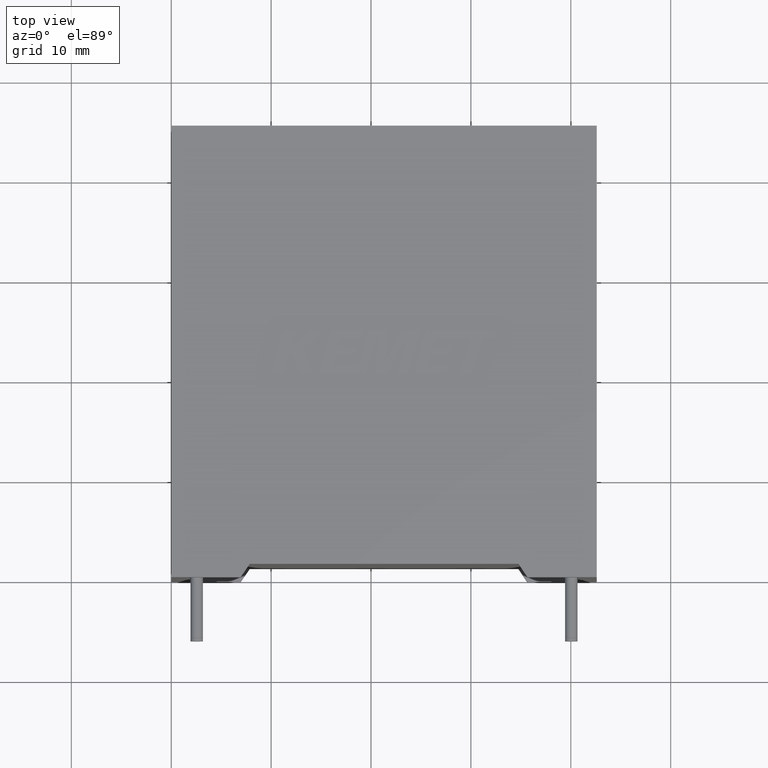
[diagram: clean part render]
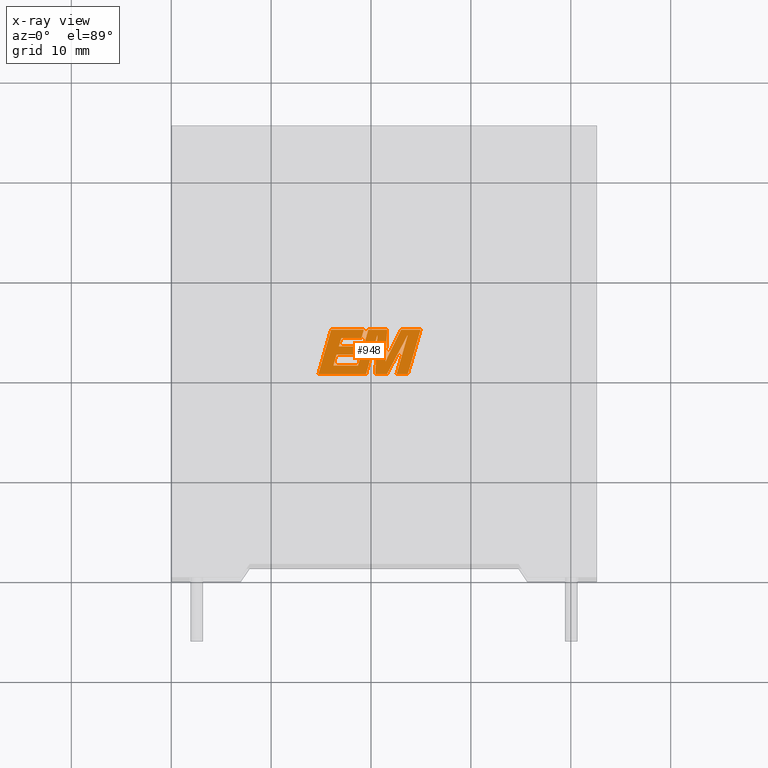
[diagram: x-ray — body ghosted, one internal face saturated and labeled with its STEP entity id]
A machine part, top view, then the same camera in x-ray: the body is ghosted and one INTERNAL B-rep face — a face not visible from any outside direction — is saturated and labeled: STEP entity #948.
In plain terms, the highlighted planar face has unit normal (0, 0, -1).
Its self-contained STEP definition (entity closure, byte-faithful):
#4 = LINE ( 'NONE', #2202, #2504 ) ;
#40 = VECTOR ( 'NONE', #1442, 1000.000000000000100 ) ;
#54 = DIRECTION ( 'NONE',  ( -1.000000000000000000, 0.0000000000000000000, 0.0000000000000000000 ) ) ;
#63 = DIRECTION ( 'NONE',  ( 1.000000000000000000, 0.0000000000000000000, 0.0000000000000000000 ) ) ;
#69 = EDGE_CURVE ( 'NONE', #749, #1993, #1301, .T. ) ;
#70 = LINE ( 'NONE', #2564, #1781 ) ;
#99 = CARTESIAN_POINT ( 'NONE',  ( 20.42202856382045800, 20.32643999999987700, 30.39999999999999900 ) ) ;
#105 = CARTESIAN_POINT ( 'NONE',  ( 18.68735580131990700, 23.09268343126179300, 30.39999999999999900 ) ) ;
#124 = VERTEX_POINT ( 'NONE', #2812 ) ;
#132 = VERTEX_POINT ( 'NONE', #2077 ) ;
#157 = LINE ( 'NONE', #1448, #1023 ) ;
#178 = EDGE_CURVE ( 'NONE', #915, #924, #2333, .T. ) ;
#184 = VECTOR ( 'NONE', #1859, 1000.000000000000200 ) ;
#186 = LINE ( 'NONE', #1141, #1987 ) ;
#192 = CARTESIAN_POINT ( 'NONE',  ( 21.60450190883435100, 20.32643999999987700, 30.39999999999999900 ) ) ;
#194 = CARTESIAN_POINT ( 'NONE',  ( 19.50954545448809100, 20.32643999999987700, 30.39999999999999900 ) ) ;
#218 = CARTESIAN_POINT ( 'NONE',  ( 16.54963302310860100, 22.27270559325017300, 30.39999999999999900 ) ) ;
#225 = CARTESIAN_POINT ( 'NONE',  ( 20.42202856382045800, 20.32643999999987700, 30.39999999999999900 ) ) ;
#274 = VECTOR ( 'NONE', #54, 1000.000000000000000 ) ;
#279 = VECTOR ( 'NONE', #2304, 1000.000000000000100 ) ;
#284 = VERTEX_POINT ( 'NONE', #482 ) ;
#297 = DIRECTION ( 'NONE',  ( 0.2793947940878290800, 0.9601763114327595000, 0.0000000000000000000 ) ) ;
#309 = VERTEX_POINT ( 'NONE', #1158 ) ;
#332 = CARTESIAN_POINT ( 'NONE',  ( 14.73111344322171200, 20.32643999999987700, 30.39999999999999900 ) ) ;
#334 = EDGE_CURVE ( 'NONE', #124, #1377, #1929, .T. ) ;
#342 = ORIENTED_EDGE ( 'NONE', *, *, #2303, .F. ) ;
#351 = DIRECTION ( 'NONE',  ( 0.2746459304916870600, 0.9615454294334487800, 0.0000000000000000000 ) ) ;
#390 = ORIENTED_EDGE ( 'NONE', *, *, #178, .F. ) ;
#455 = ORIENTED_EDGE ( 'NONE', *, *, #2685, .F. ) ;
#460 = LINE ( 'NONE', #2445, #1763 ) ;
#482 = CARTESIAN_POINT ( 'NONE',  ( 23.69914816909359300, 24.29429440274525800, 30.39999999999999900 ) ) ;
#483 = CARTESIAN_POINT ( 'NONE',  ( 20.64337227469650000, 24.27527815657259000, 30.39999999999999900 ) ) ;
#550 = EDGE_CURVE ( 'NONE', #1717, #2753, #2023, .T. ) ;
#564 = CARTESIAN_POINT ( 'NONE',  ( 16.00748119315608500, 24.76197267852246900, 30.39999999999999900 ) ) ;
#599 = EDGE_LOOP ( 'NONE', ( #2718, #3095, #2127, #2404, #1357, #2251, #1540, #390, #864, #455, #2667, #1098, #1476, #3009, #774, #2313, #663, #342, #1765, #2184, #2177, #1094, #2918 ) ) ;
#602 = VERTEX_POINT ( 'NONE', #2078 ) ;
#663 = ORIENTED_EDGE ( 'NONE', *, *, #887, .F. ) ;
#686 = DIRECTION ( 'NONE',  ( 0.2740217765954296400, 0.9617234872620531400, 0.0000000000000000000 ) ) ;
#742 = CARTESIAN_POINT ( 'NONE',  ( 16.54963302310860100, 22.27270559325017300, 30.39999999999999900 ) ) ;
#743 = CARTESIAN_POINT ( 'NONE',  ( -0.1503410928526370500, -1.896653983250437700, 30.39999999999999900 ) ) ;
#749 = VERTEX_POINT ( 'NONE', #2626 ) ;
#758 = LINE ( 'NONE', #192, #2658 ) ;
#774 = ORIENTED_EDGE ( 'NONE', *, *, #2612, .F. ) ;
#791 = DIRECTION ( 'NONE',  ( -0.2762517575166409900, -0.9610853065513834700, 0.0000000000000000000 ) ) ;
#804 = LINE ( 'NONE', #218, #2318 ) ;
#818 = DIRECTION ( 'NONE',  ( -1.000000000000000000, 0.0000000000000000000, 0.0000000000000000000 ) ) ;
#825 = DIRECTION ( 'NONE',  ( -0.2765379750249978300, -0.9610029908221272600, 0.0000000000000000000 ) ) ;
#841 = CARTESIAN_POINT ( 'NONE',  ( 23.68684829922329600, 20.32643999999988100, 30.39999999999999900 ) ) ;
#864 = ORIENTED_EDGE ( 'NONE', *, *, #2193, .F. ) ;
#887 = EDGE_CURVE ( 'NONE', #3014, #749, #804, .T. ) ;
#896 = CARTESIAN_POINT ( 'NONE',  ( 18.72003407046369000, 20.32643999999987700, 30.39999999999999900 ) ) ;
#915 = VERTEX_POINT ( 'NONE', #2385 ) ;
#924 = VERTEX_POINT ( 'NONE', #483 ) ;
#948 = ADVANCED_FACE ( 'NONE', ( #2907 ), #2190, .T. ) ;
#957 = VERTEX_POINT ( 'NONE', #2149 ) ;
#965 = EDGE_CURVE ( 'NONE', #2212, #309, #157, .T. ) ;
#967 = DIRECTION ( 'NONE',  ( -1.000000000000000000, 0.0000000000000000000, 0.0000000000000000000 ) ) ;
#999 = CARTESIAN_POINT ( 'NONE',  ( 24.96209664954390200, 24.76197267852246900, 30.39999999999999900 ) ) ;
#1006 = CARTESIAN_POINT ( 'NONE',  ( 19.04451057535562700, 23.91769180815600000, 30.39999999999999900 ) ) ;
#1014 = VECTOR ( 'NONE', #818, 1000.000000000000000 ) ;
#1021 = EDGE_CURVE ( 'NONE', #1911, #2056, #2742, .T. ) ;
#1023 = VECTOR ( 'NONE', #2687, 1000.000000000000000 ) ;
#1053 = VECTOR ( 'NONE', #967, 1000.000000000000000 ) ;
#1072 = CARTESIAN_POINT ( 'NONE',  ( 24.96209664954390200, 24.76197267852246900, 30.39999999999999900 ) ) ;
#1088 = LINE ( 'NONE', #3140, #2084 ) ;
#1094 = ORIENTED_EDGE ( 'NONE', *, *, #1389, .F. ) ;
#1098 = ORIENTED_EDGE ( 'NONE', *, *, #2832, .F. ) ;
#1123 = VECTOR ( 'NONE', #2141, 1000.000000000000000 ) ;
#1141 = CARTESIAN_POINT ( 'NONE',  ( 22.55971088192821100, 20.32643999999988100, 30.39999999999999900 ) ) ;
#1158 = CARTESIAN_POINT ( 'NONE',  ( 19.72672177880340200, 24.76197267852246900, 30.39999999999999900 ) ) ;
#1165 = LINE ( 'NONE', #564, #1753 ) ;
#1183 = CARTESIAN_POINT ( 'NONE',  ( 16.23552779361820300, 21.17030278269269100, 30.39999999999999900 ) ) ;
#1199 = VECTOR ( 'NONE', #2683, 1000.000000000000000 ) ;
#1248 = LINE ( 'NONE', #2121, #40 ) ;
#1284 = VERTEX_POINT ( 'NONE', #99 ) ;
#1301 = LINE ( 'NONE', #1597, #1464 ) ;
#1331 = CARTESIAN_POINT ( 'NONE',  ( 17.02363656092146000, 23.91769180815600000, 30.39999999999999900 ) ) ;
#1339 = EDGE_CURVE ( 'NONE', #284, #2015, #1088, .T. ) ;
#1357 = ORIENTED_EDGE ( 'NONE', *, *, #2919, .F. ) ;
#1377 = VERTEX_POINT ( 'NONE', #1183 ) ;
#1389 = EDGE_CURVE ( 'NONE', #957, #2212, #1248, .T. ) ;
#1394 = CARTESIAN_POINT ( 'NONE',  ( 23.68684829922329600, 20.32643999999988100, 30.39999999999999900 ) ) ;
#1404 = CARTESIAN_POINT ( 'NONE',  ( 16.23552779361820300, 21.17030278269269100, 30.39999999999999900 ) ) ;
#1418 = VERTEX_POINT ( 'NONE', #2381 ) ;
#1426 = DIRECTION ( 'NONE',  ( -1.000000000000000000, 0.0000000000000000000, 0.0000000000000000000 ) ) ;
#1434 = DIRECTION ( 'NONE',  ( 0.0000000000000000000, 0.0000000000000000000, -1.000000000000000000 ) ) ;
#1442 = DIRECTION ( 'NONE',  ( 0.05375259206908569700, 0.9985542843760946100, 0.0000000000000000000 ) ) ;
#1448 = CARTESIAN_POINT ( 'NONE',  ( 21.61565822307399600, 24.76197267852246900, 30.39999999999999900 ) ) ;
#1464 = VECTOR ( 'NONE', #351, 1000.000000000000000 ) ;
#1476 = ORIENTED_EDGE ( 'NONE', *, *, #1610, .F. ) ;
#1515 = CARTESIAN_POINT ( 'NONE',  ( 19.28430409104226900, 24.76197267852246900, 30.39999999999999900 ) ) ;
#1540 = ORIENTED_EDGE ( 'NONE', *, *, #2737, .F. ) ;
#1548 = EDGE_CURVE ( 'NONE', #132, #1682, #460, .T. ) ;
#1586 = CARTESIAN_POINT ( 'NONE',  ( 23.01670218402871300, 24.76197267852246900, 30.39999999999999900 ) ) ;
#1597 = CARTESIAN_POINT ( 'NONE',  ( 18.45314577919338500, 22.27270559325017300, 30.39999999999999900 ) ) ;
#1610 = EDGE_CURVE ( 'NONE', #1682, #2524, #1959, .T. ) ;
#1628 = DIRECTION ( 'NONE',  ( 0.2759782365590843200, 0.9611638845408925200, 0.0000000000000000000 ) ) ;
#1670 = EDGE_CURVE ( 'NONE', #1418, #957, #1873, .T. ) ;
#1682 = VERTEX_POINT ( 'NONE', #1331 ) ;
#1717 = VERTEX_POINT ( 'NONE', #1394 ) ;
#1753 = VECTOR ( 'NONE', #825, 1000.000000000000100 ) ;
#1763 = VECTOR ( 'NONE', #297, 1000.000000000000100 ) ;
#1765 = ORIENTED_EDGE ( 'NONE', *, *, #334, .F. ) ;
#1781 = VECTOR ( 'NONE', #2306, 1000.000000000000000 ) ;
#1840 = VECTOR ( 'NONE', #1628, 1000.000000000000000 ) ;
#1859 = DIRECTION ( 'NONE',  ( 0.2732148821746573400, 0.9619530280415400400, 0.0000000000000000000 ) ) ;
#1873 = LINE ( 'NONE', #1586, #279 ) ;
#1911 = VERTEX_POINT ( 'NONE', #2407 ) ;
#1915 = DIRECTION ( 'NONE',  ( 0.4668459304955230900, 0.8843386665637600300, 0.0000000000000000000 ) ) ;
#1929 = LINE ( 'NONE', #2623, #2488 ) ;
#1959 = LINE ( 'NONE', #2069, #3124 ) ;
#1987 = VECTOR ( 'NONE', #2582, 1000.000000000000000 ) ;
#1993 = VERTEX_POINT ( 'NONE', #2187 ) ;
#2001 = AXIS2_PLACEMENT_3D ( 'NONE', #743, #1434, #3150 ) ;
#2007 = CARTESIAN_POINT ( 'NONE',  ( 16.00748119315608500, 24.76197267852246900, 30.39999999999999900 ) ) ;
#2009 = EDGE_CURVE ( 'NONE', #2753, #1418, #2701, .T. ) ;
#2015 = VERTEX_POINT ( 'NONE', #2690 ) ;
#2023 = LINE ( 'NONE', #841, #3083 ) ;
#2056 = VERTEX_POINT ( 'NONE', #2007 ) ;
#2069 = CARTESIAN_POINT ( 'NONE',  ( 17.02363656092146000, 23.91769180815600000, 30.39999999999999900 ) ) ;
#2077 = CARTESIAN_POINT ( 'NONE',  ( 16.78357331124689000, 23.09268343126179300, 30.39999999999999900 ) ) ;
#2078 = CARTESIAN_POINT ( 'NONE',  ( 21.60450190883435100, 20.32643999999987700, 30.39999999999999900 ) ) ;
#2084 = VECTOR ( 'NONE', #2410, 1000.000000000000100 ) ;
#2102 = VERTEX_POINT ( 'NONE', #332 ) ;
#2121 = CARTESIAN_POINT ( 'NONE',  ( 21.44508031966771700, 21.59317114338324800, 30.39999999999999900 ) ) ;
#2127 = ORIENTED_EDGE ( 'NONE', *, *, #2254, .F. ) ;
#2141 = DIRECTION ( 'NONE',  ( 1.000000000000000000, 0.0000000000000000000, 0.0000000000000000000 ) ) ;
#2149 = CARTESIAN_POINT ( 'NONE',  ( 21.44508031966771700, 21.59317114338324800, 30.39999999999999900 ) ) ;
#2177 = ORIENTED_EDGE ( 'NONE', *, *, #965, .F. ) ;
#2184 = ORIENTED_EDGE ( 'NONE', *, *, #2513, .F. ) ;
#2187 = CARTESIAN_POINT ( 'NONE',  ( 18.68735580131990700, 23.09268343126179300, 30.39999999999999900 ) ) ;
#2190 = PLANE ( 'NONE',  #2001 ) ;
#2193 = EDGE_CURVE ( 'NONE', #2102, #915, #3073, .T. ) ;
#2202 = CARTESIAN_POINT ( 'NONE',  ( 19.72672177880340200, 24.76197267852246900, 30.39999999999999900 ) ) ;
#2212 = VERTEX_POINT ( 'NONE', #2341 ) ;
#2251 = ORIENTED_EDGE ( 'NONE', *, *, #3027, .F. ) ;
#2254 = EDGE_CURVE ( 'NONE', #2015, #1717, #186, .T. ) ;
#2276 = VECTOR ( 'NONE', #686, 1000.000000000000100 ) ;
#2303 = EDGE_CURVE ( 'NONE', #1377, #3014, #2584, .T. ) ;
#2304 = DIRECTION ( 'NONE',  ( -0.4443210308329524900, -0.8958676361826798400, 0.0000000000000000000 ) ) ;
#2306 = DIRECTION ( 'NONE',  ( -0.05596501978068446600, -0.9984327301130244700, 0.0000000000000000000 ) ) ;
#2313 = ORIENTED_EDGE ( 'NONE', *, *, #69, .F. ) ;
#2318 = VECTOR ( 'NONE', #2673, 1000.000000000000000 ) ;
#2333 = LINE ( 'NONE', #194, #1840 ) ;
#2341 = CARTESIAN_POINT ( 'NONE',  ( 21.61565822307399600, 24.76197267852246900, 30.39999999999999900 ) ) ;
#2381 = CARTESIAN_POINT ( 'NONE',  ( 23.01670218402871300, 24.76197267852246900, 30.39999999999999900 ) ) ;
#2385 = CARTESIAN_POINT ( 'NONE',  ( 19.50954545448809100, 20.32643999999987700, 30.39999999999999900 ) ) ;
#2404 = ORIENTED_EDGE ( 'NONE', *, *, #1339, .F. ) ;
#2407 = CARTESIAN_POINT ( 'NONE',  ( 19.28430409104226900, 24.76197267852246900, 30.39999999999999900 ) ) ;
#2410 = DIRECTION ( 'NONE',  ( -0.2760118818968583200, -0.9611542233438683500, 0.0000000000000000000 ) ) ;
#2445 = CARTESIAN_POINT ( 'NONE',  ( 16.78357331124689000, 23.09268343126179300, 30.39999999999999900 ) ) ;
#2465 = LINE ( 'NONE', #2838, #184 ) ;
#2488 = VECTOR ( 'NONE', #1426, 1000.000000000000000 ) ;
#2504 = VECTOR ( 'NONE', #791, 1000.000000000000200 ) ;
#2513 = EDGE_CURVE ( 'NONE', #309, #124, #4, .T. ) ;
#2524 = VERTEX_POINT ( 'NONE', #1006 ) ;
#2564 = CARTESIAN_POINT ( 'NONE',  ( 20.64337227469650000, 24.27527815657259000, 30.39999999999999900 ) ) ;
#2572 = LINE ( 'NONE', #105, #1014 ) ;
#2582 = DIRECTION ( 'NONE',  ( 1.000000000000000000, 0.0000000000000000000, 0.0000000000000000000 ) ) ;
#2584 = LINE ( 'NONE', #1404, #2276 ) ;
#2612 = EDGE_CURVE ( 'NONE', #1993, #132, #2572, .T. ) ;
#2623 = CARTESIAN_POINT ( 'NONE',  ( 18.69434191160631900, 21.17030278269269100, 30.39999999999999900 ) ) ;
#2626 = CARTESIAN_POINT ( 'NONE',  ( 18.45314577919338500, 22.27270559325017300, 30.39999999999999900 ) ) ;
#2658 = VECTOR ( 'NONE', #1915, 1000.000000000000000 ) ;
#2667 = ORIENTED_EDGE ( 'NONE', *, *, #1021, .F. ) ;
#2673 = DIRECTION ( 'NONE',  ( 1.000000000000000000, 0.0000000000000000000, 0.0000000000000000000 ) ) ;
#2683 = DIRECTION ( 'NONE',  ( 1.000000000000000000, 0.0000000000000000000, 0.0000000000000000000 ) ) ;
#2685 = EDGE_CURVE ( 'NONE', #2056, #2102, #1165, .T. ) ;
#2687 = DIRECTION ( 'NONE',  ( -1.000000000000000000, 0.0000000000000000000, 0.0000000000000000000 ) ) ;
#2690 = CARTESIAN_POINT ( 'NONE',  ( 22.55971088192821100, 20.32643999999988100, 30.39999999999999900 ) ) ;
#2701 = LINE ( 'NONE', #999, #1053 ) ;
#2718 = ORIENTED_EDGE ( 'NONE', *, *, #2009, .F. ) ;
#2737 = EDGE_CURVE ( 'NONE', #924, #1284, #70, .T. ) ;
#2742 = LINE ( 'NONE', #1515, #274 ) ;
#2753 = VERTEX_POINT ( 'NONE', #1072 ) ;
#2767 = LINE ( 'NONE', #225, #1199 ) ;
#2792 = DIRECTION ( 'NONE',  ( 0.2763139702539144100, 0.9610674221107065000, 0.0000000000000000000 ) ) ;
#2812 = CARTESIAN_POINT ( 'NONE',  ( 18.69434191160631900, 21.17030278269269100, 30.39999999999999900 ) ) ;
#2832 = EDGE_CURVE ( 'NONE', #2524, #1911, #2465, .T. ) ;
#2838 = CARTESIAN_POINT ( 'NONE',  ( 19.04451057535562700, 23.91769180815600000, 30.39999999999999900 ) ) ;
#2907 = FACE_OUTER_BOUND ( 'NONE', #599, .T. ) ;
#2918 = ORIENTED_EDGE ( 'NONE', *, *, #1670, .F. ) ;
#2919 = EDGE_CURVE ( 'NONE', #602, #284, #758, .T. ) ;
#3009 = ORIENTED_EDGE ( 'NONE', *, *, #1548, .F. ) ;
#3014 = VERTEX_POINT ( 'NONE', #742 ) ;
#3027 = EDGE_CURVE ( 'NONE', #1284, #602, #2767, .T. ) ;
#3073 = LINE ( 'NONE', #896, #1123 ) ;
#3083 = VECTOR ( 'NONE', #2792, 1000.000000000000100 ) ;
#3095 = ORIENTED_EDGE ( 'NONE', *, *, #550, .F. ) ;
#3124 = VECTOR ( 'NONE', #63, 1000.000000000000000 ) ;
#3140 = CARTESIAN_POINT ( 'NONE',  ( 23.69914816909359300, 24.29429440274525800, 30.39999999999999900 ) ) ;
#3150 = DIRECTION ( 'NONE',  ( -1.000000000000000000, 0.0000000000000000000, -0.0000000000000000000 ) ) ;